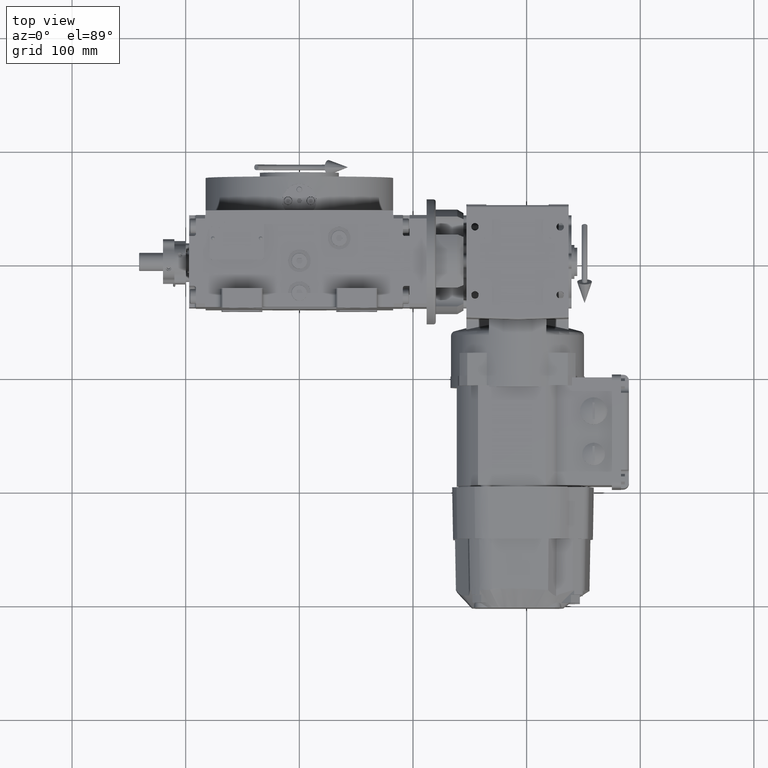
[diagram: clean part render]
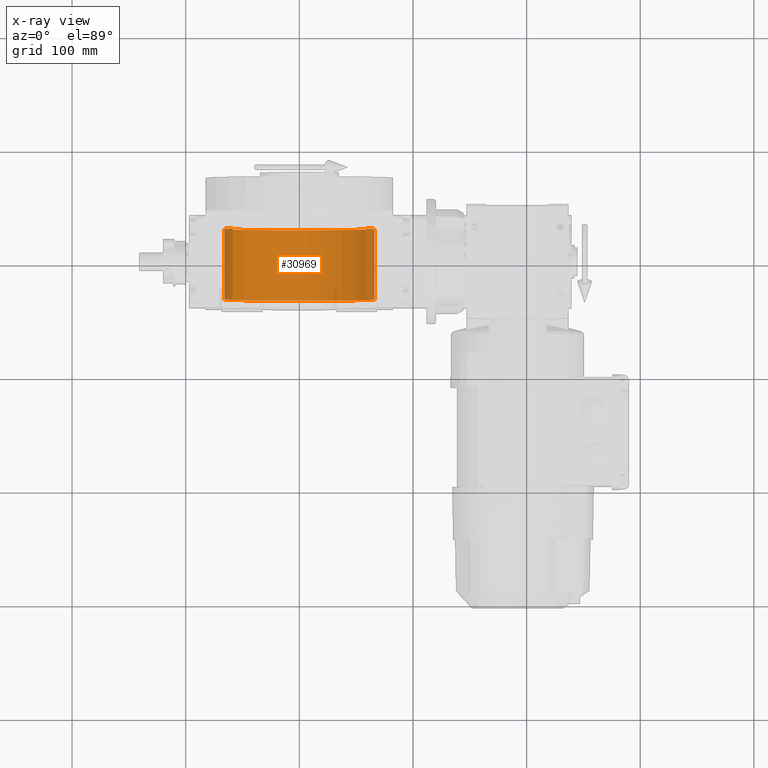
[diagram: x-ray — body ghosted, one internal face saturated and labeled with its STEP entity id]
A machine part, top view, then the same camera in x-ray: the body is ghosted and one INTERNAL B-rep face — a face not visible from any outside direction — is saturated and labeled: STEP entity #30969.
In plain terms, the highlighted cylindrical surface (partial cylindrical patch) has radius 66 mm, axis along (0, 1, 0).
Its self-contained STEP definition (entity closure, byte-faithful):
#3335 = DIRECTION ( 'NONE',  ( 0.000000000000000000, 0.000000000000000000, 1.000000000000000000 ) ) ;
#4952 = EDGE_LOOP ( 'NONE', ( #102893, #31355, #85877, #37612 ) ) ;
#6475 = EDGE_CURVE ( 'NONE', #89587, #96840, #53722, .T. ) ;
#11324 = DIRECTION ( 'NONE',  ( -0.000000000000000000, 1.000000000000000000, -0.000000000000000000 ) ) ;
#12596 = AXIS2_PLACEMENT_3D ( 'NONE', #39468, #55404, #46919 ) ;
#13629 = DIRECTION ( 'NONE',  ( 0.000000000000000000, -1.000000000000000000, 0.000000000000000000 ) ) ;
#16255 = EDGE_CURVE ( 'NONE', #89587, #43342, #48822, .T. ) ;
#19696 = CARTESIAN_POINT ( 'NONE',  ( 58.78775382679628336, 30.00000000000002842, 30.00000000000000000 ) ) ;
#21059 = VECTOR ( 'NONE', #56800, 1000.000000000000000 ) ;
#25736 = EDGE_CURVE ( 'NONE', #57087, #96840, #46038, .T. ) ;
#30969 = ADVANCED_FACE ( 'NONE', ( #92101 ), #33640, .F. ) ;
#31068 = DIRECTION ( 'NONE',  ( 0.000000000000000000, 0.000000000000000000, 1.000000000000000000 ) ) ;
#31245 = CIRCLE ( 'NONE', #12596, 66.00000000000000000 ) ;
#31355 = ORIENTED_EDGE ( 'NONE', *, *, #6475, .F. ) ;
#33640 = CYLINDRICAL_SURFACE ( 'NONE', #55212, 66.00000000000000000 ) ;
#37612 = ORIENTED_EDGE ( 'NONE', *, *, #87046, .T. ) ;
#39468 = CARTESIAN_POINT ( 'NONE',  ( 0.000000000000000000, 30.00000000000002842, 0.000000000000000000 ) ) ;
#41984 = CARTESIAN_POINT ( 'NONE',  ( 58.78775382679628336, -32.00000000000002842, 30.00000000000000000 ) ) ;
#42686 = VECTOR ( 'NONE', #13629, 1000.000000000000000 ) ;
#43342 = VERTEX_POINT ( 'NONE', #19696 ) ;
#46038 = LINE ( 'NONE', #69932, #42686 ) ;
#46919 = DIRECTION ( 'NONE',  ( 0.000000000000000000, 0.000000000000000000, 1.000000000000000000 ) ) ;
#48822 = LINE ( 'NONE', #89247, #21059 ) ;
#53722 = CIRCLE ( 'NONE', #79175, 66.00000000000000000 ) ;
#55212 = AXIS2_PLACEMENT_3D ( 'NONE', #76122, #11324, #3335 ) ;
#55404 = DIRECTION ( 'NONE',  ( -0.000000000000000000, 1.000000000000000000, -0.000000000000000000 ) ) ;
#56800 = DIRECTION ( 'NONE',  ( -0.000000000000000000, 1.000000000000000000, -0.000000000000000000 ) ) ;
#57087 = VERTEX_POINT ( 'NONE', #87798 ) ;
#69932 = CARTESIAN_POINT ( 'NONE',  ( -58.78775382679628336, 304.7000005315479711, 30.00000000000000000 ) ) ;
#70393 = DIRECTION ( 'NONE',  ( -0.000000000000000000, 1.000000000000000000, -0.000000000000000000 ) ) ;
#70495 = CARTESIAN_POINT ( 'NONE',  ( -58.78775382679628336, -32.00000000000002842, 30.00000000000000000 ) ) ;
#76122 = CARTESIAN_POINT ( 'NONE',  ( 0.000000000000000000, 304.7000005315479711, 0.000000000000000000 ) ) ;
#79175 = AXIS2_PLACEMENT_3D ( 'NONE', #103863, #70393, #31068 ) ;
#85877 = ORIENTED_EDGE ( 'NONE', *, *, #16255, .T. ) ;
#87046 = EDGE_CURVE ( 'NONE', #43342, #57087, #31245, .T. ) ;
#87798 = CARTESIAN_POINT ( 'NONE',  ( -58.78775382679628336, 30.00000000000002842, 30.00000000000000000 ) ) ;
#89247 = CARTESIAN_POINT ( 'NONE',  ( 58.78775382679628336, 304.7000005315479711, 30.00000000000000000 ) ) ;
#89587 = VERTEX_POINT ( 'NONE', #41984 ) ;
#92101 = FACE_OUTER_BOUND ( 'NONE', #4952, .T. ) ;
#96840 = VERTEX_POINT ( 'NONE', #70495 ) ;
#102893 = ORIENTED_EDGE ( 'NONE', *, *, #25736, .T. ) ;
#103863 = CARTESIAN_POINT ( 'NONE',  ( 0.000000000000000000, -32.00000000000002842, 0.000000000000000000 ) ) ;